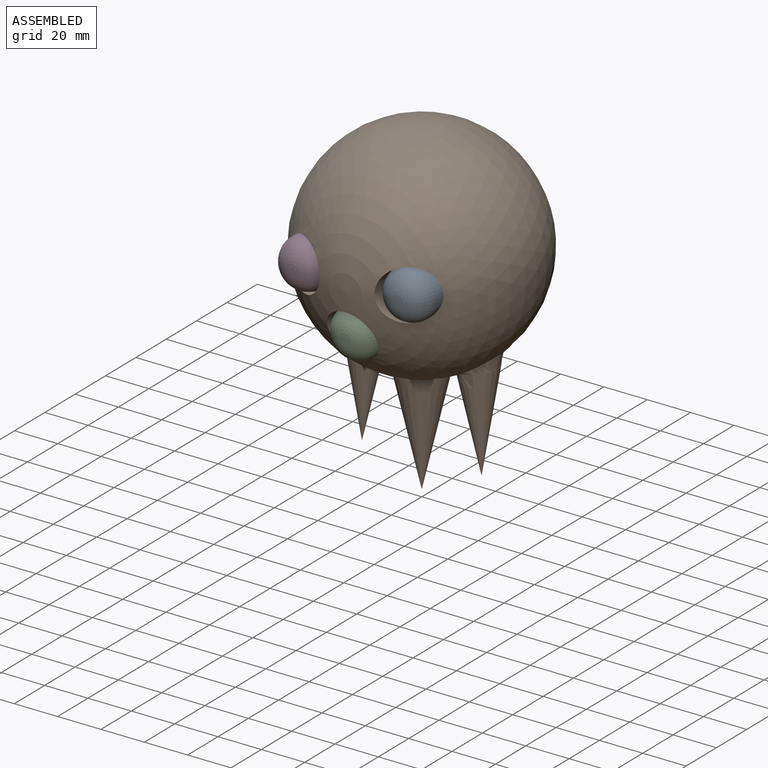
[diagram: assembled view]
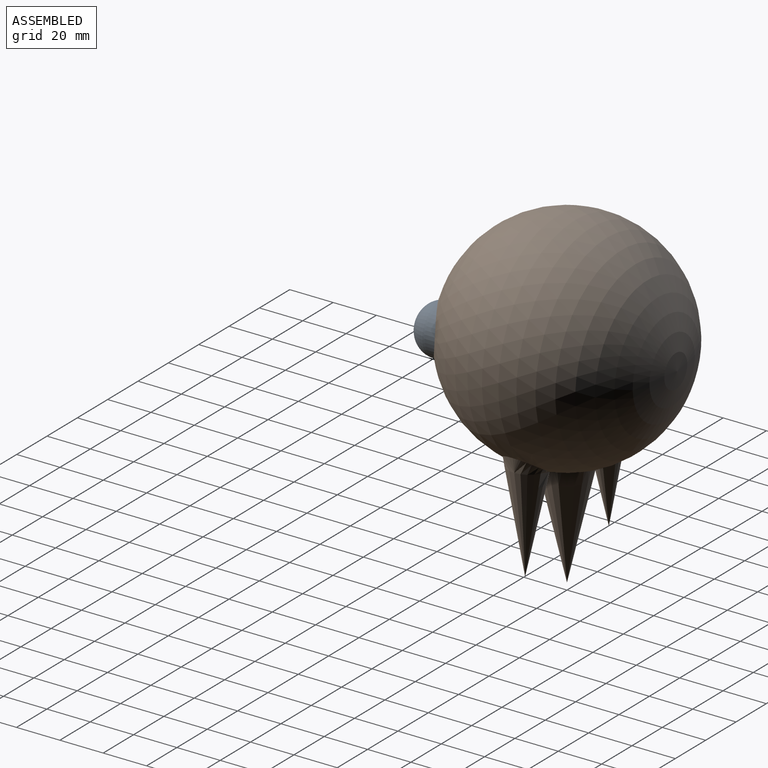
[diagram: assembled view, second angle]
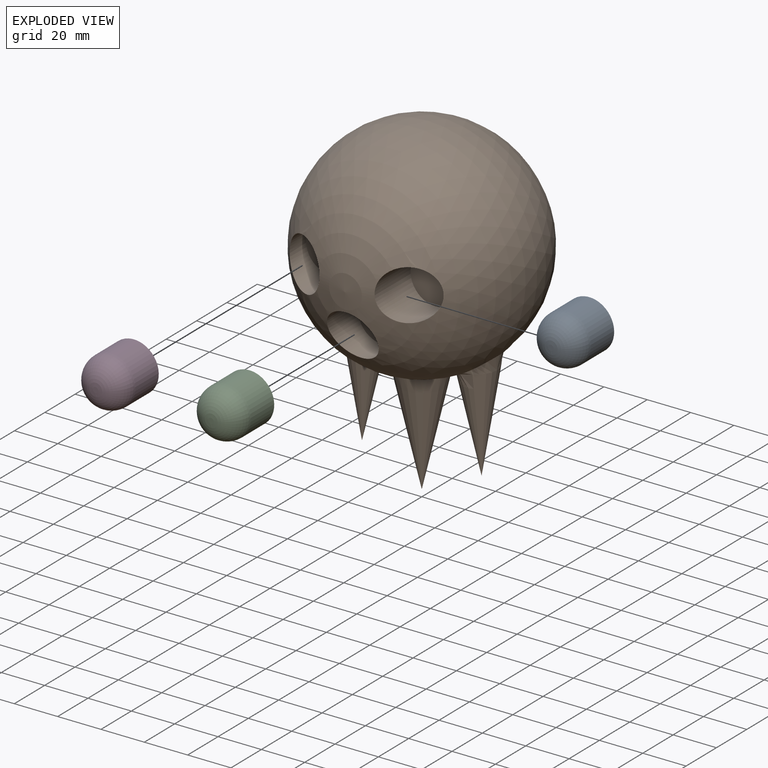
[diagram: exploded view]
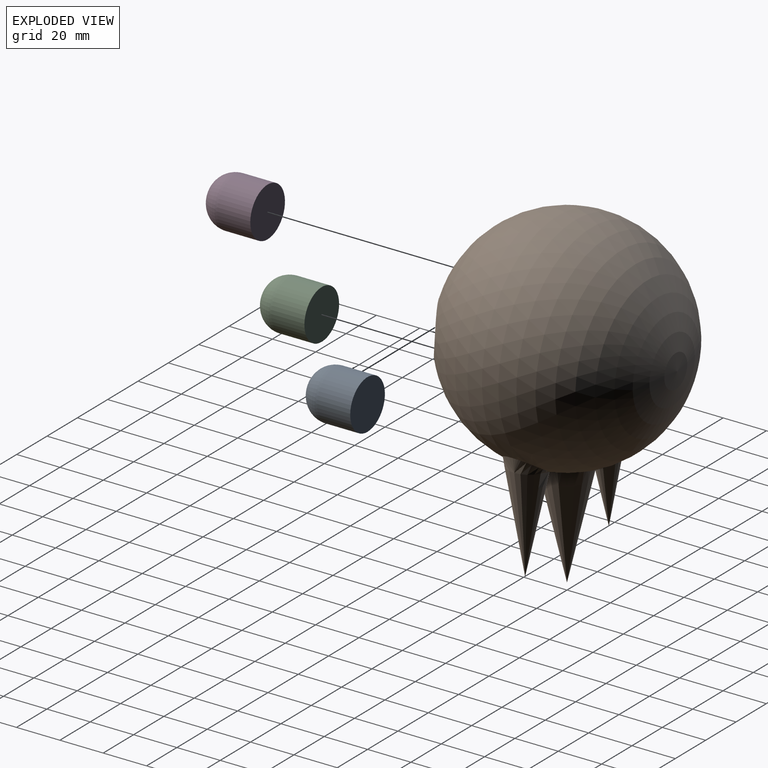
[diagram: exploded view, second angle]
ASSEMBLY  parts=4 mates=3
PART A: 4 faces, bbox 22.9x25.4x22.9 mm
  f0: cylinder r=11.43mm len=22.86mm, axis (0,1,0), area 1094.5mm2, adj f2,f3
  f1: plane 2.54x2.54mm, normal (0,-1,0), area 5.1mm2, adj f3
  f2: plane 22.86x22.86mm, normal (0,1,0), area 410.4mm2, adj f0
  f3: torus R=1.27mm, axis (0,-1,0), area 775.9mm2, adj f0,f1
PART B: 10 faces, bbox 101.6x101.6x152.4 mm
  f0: cone r=10.1mm half-angle=11deg, axis (-0.04,0,1), area 1337.6mm2, adj f9
  f1: cone r=11.92mm half-angle=12.9deg, axis (0,0,1), area 2006.2mm2, adj f9
  f2: cone r=10.1mm half-angle=11deg, axis (0.04,0,1), area 1337.6mm2, adj f9
  f3: cylinder r=11.43mm len=23.78mm, axis (0,-1,0), area 1261.4mm2, adj f4,f9
  f4: plane 22.86x22.86mm, normal (0,-1,0), area 410.4mm2, adj f3
  f5: cylinder r=11.43mm len=24.64mm, axis (0,-1,0), area 1411.6mm2, adj f6,f9
  f6: plane 22.86x22.86mm, normal (0,-1,0), area 410.4mm2, adj f5
  f7: cylinder r=11.43mm len=23.74mm, axis (0,-1,0), area 1254.6mm2, adj f8,f9
  f8: plane 22.86x22.86mm, normal (0,-1,0), area 410.4mm2, adj f7
  f9: sphere r=50.8mm, area 29966.6mm2, adj f0,f1,f2,f3,f5,f7
PART C: 4 faces, bbox 22.9x25.4x22.9 mm
  f0: cylinder r=11.43mm len=22.86mm, axis (0,1,0), area 1094.5mm2, adj f2,f3
  f1: plane 2.54x2.54mm, normal (0,-1,0), area 5.1mm2, adj f3
  f2: plane 22.86x22.86mm, normal (0,1,0), area 410.4mm2, adj f0
  f3: torus R=1.27mm, axis (0,-1,0), area 775.9mm2, adj f0,f1
PART D: 4 faces, bbox 22.9x25.4x22.9 mm
  f0: cylinder r=11.43mm len=22.86mm, axis (0,1,0), area 1094.5mm2, adj f2,f3
  f1: plane 2.54x2.54mm, normal (0,-1,0), area 5.1mm2, adj f3
  f2: plane 22.86x22.86mm, normal (0,1,0), area 410.4mm2, adj f0
  f3: torus R=1.27mm, axis (0,-1,0), area 775.9mm2, adj f0,f1
PLACE A t=(157.4,-25.4,12.83)mm
PLACE B at identity
PLACE C t=(165.23,-25.4,-11.42)mm
PLACE D t=(120.85,-25.4,48.91)mm
MATE fastened C.f0 <-> B.f5  axis (0,1,0) through (-0.19,-25.4,5.23)mm
MATE fastened A.f0 <-> B.f3  axis (0,1,0) through (24.05,-25.4,27.63)mm
MATE fastened D.f0 <-> B.f7  axis (0,1,0) through (-24.21,-25.4,27.63)mm
